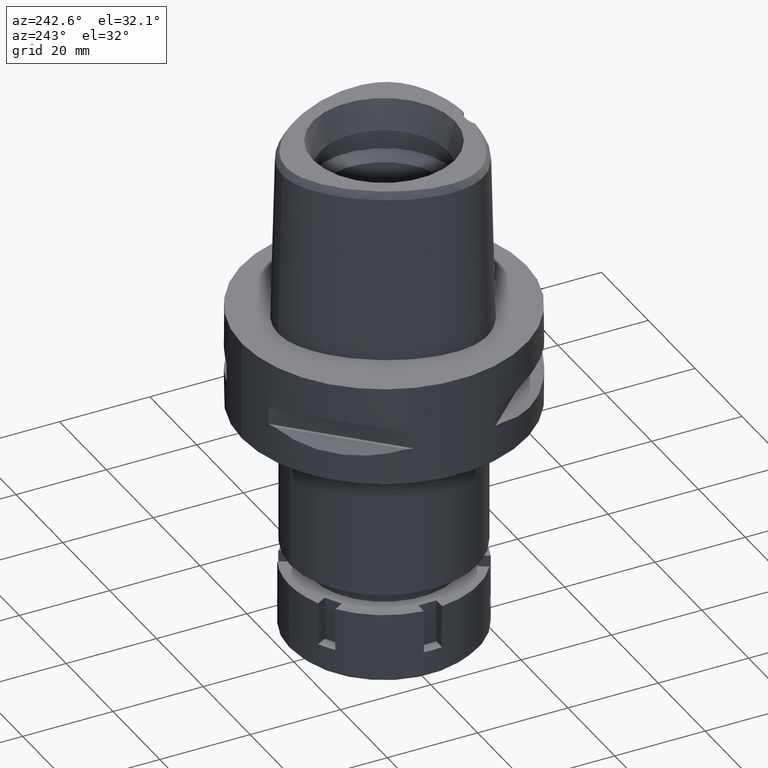
[diagram: clean part render]
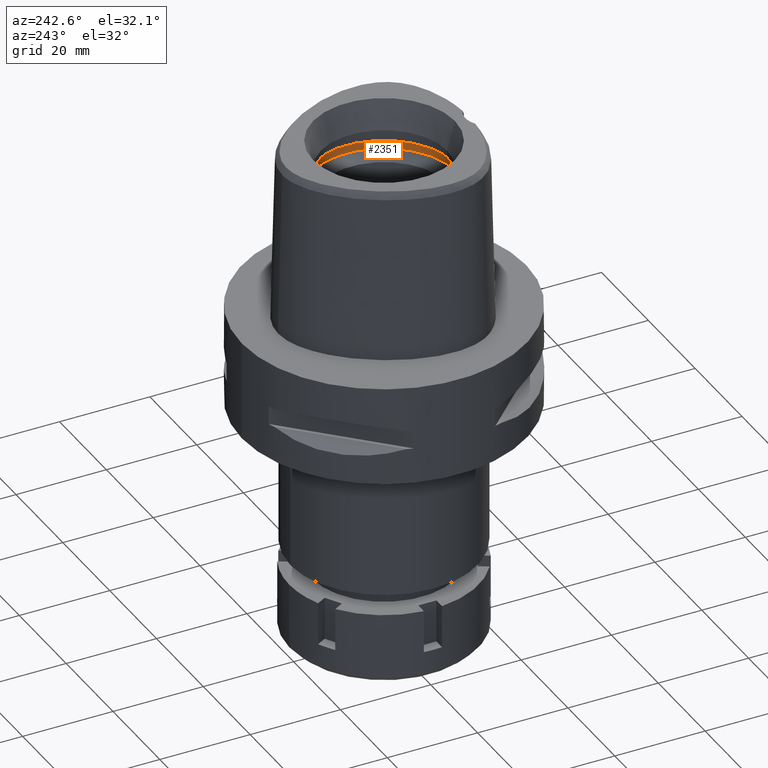
[diagram: same view with one face highlighted and labeled with its STEP entity id]
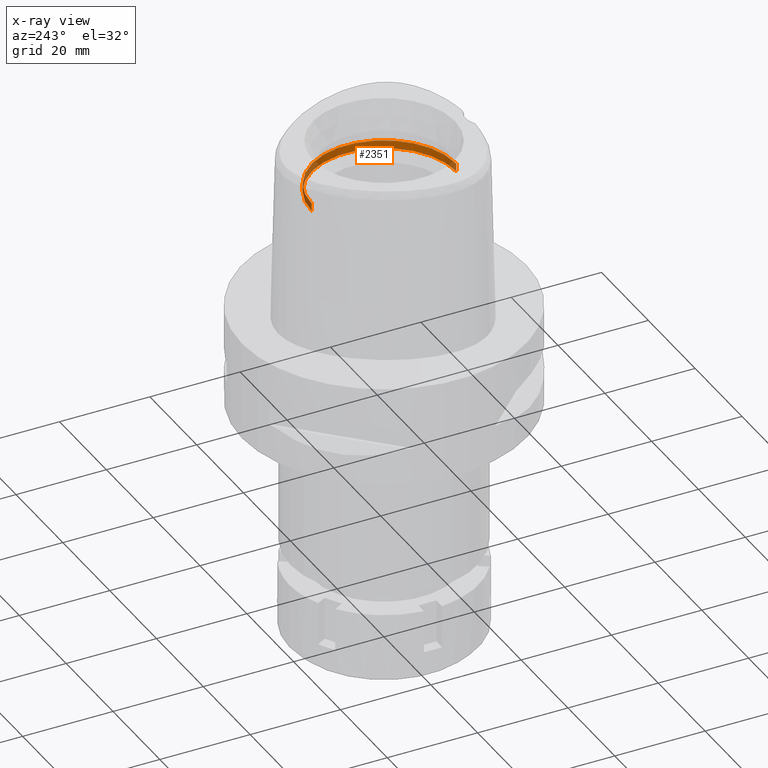
[diagram: x-ray of the same camera — body ghosted, the highlighted face saturated]
A machine part, auxiliary view. The second image highlights one B-rep face of the part: STEP entity #2351.
The next image is the same camera in x-ray: the body ghosted, the highlighted face saturated — about 13% of this face is hidden behind the body in this view.
In plain terms, the highlighted cylindrical surface (partial cylindrical patch) has radius 16 mm, axis along (0, 0, -1).
Its self-contained STEP definition (entity closure, byte-faithful):
#20 = DIRECTION ( 'NONE',  ( 0.0000000000000000000, 0.0000000000000000000, 1.000000000000000000 ) ) ;
#145 = DIRECTION ( 'NONE',  ( 0.0000000000000000000, 1.000000000000000000, 0.0000000000000000000 ) ) ;
#181 = CARTESIAN_POINT ( 'NONE',  ( 0.0000000000000000000, -16.00000000000000000, 28.00000000000000000 ) ) ;
#313 = DIRECTION ( 'NONE',  ( 0.0000000000000000000, 0.0000000000000000000, 1.000000000000000000 ) ) ;
#348 = CYLINDRICAL_SURFACE ( 'NONE', #3820, 16.00000000000000000 ) ;
#351 = ORIENTED_EDGE ( 'NONE', *, *, #1743, .T. ) ;
#457 = AXIS2_PLACEMENT_3D ( 'NONE', #1058, #1956, #145 ) ;
#742 = CARTESIAN_POINT ( 'NONE',  ( 0.0000000000000000000, 0.0000000000000000000, 39.89999999999999858 ) ) ;
#840 = CARTESIAN_POINT ( 'NONE',  ( 0.0000000000000000000, 16.00000000000000000, 28.00000000000000000 ) ) ;
#884 = EDGE_CURVE ( 'NONE', #1982, #2229, #4425, .T. ) ;
#1058 = CARTESIAN_POINT ( 'NONE',  ( 0.0000000000000000000, 0.0000000000000000000, 26.20000000000000284 ) ) ;
#1140 = CARTESIAN_POINT ( 'NONE',  ( 0.0000000000000000000, 16.00000000000000000, 26.20000000000000284 ) ) ;
#1256 = DIRECTION ( 'NONE',  ( 0.0000000000000000000, -1.000000000000000000, 0.0000000000000000000 ) ) ;
#1298 = DIRECTION ( 'NONE',  ( 0.0000000000000000000, -1.000000000000000000, 0.0000000000000000000 ) ) ;
#1503 = VECTOR ( 'NONE', #313, 1000.000000000000000 ) ;
#1743 = EDGE_CURVE ( 'NONE', #3787, #4140, #2764, .T. ) ;
#1758 = EDGE_LOOP ( 'NONE', ( #2208, #4489, #351, #3959 ) ) ;
#1956 = DIRECTION ( 'NONE',  ( 0.0000000000000000000, 0.0000000000000000000, -1.000000000000000000 ) ) ;
#1982 = VERTEX_POINT ( 'NONE', #181 ) ;
#2033 = LINE ( 'NONE', #1140, #4305 ) ;
#2208 = ORIENTED_EDGE ( 'NONE', *, *, #884, .T. ) ;
#2229 = VERTEX_POINT ( 'NONE', #840 ) ;
#2351 = ADVANCED_FACE ( 'NONE', ( #5033 ), #348, .F. ) ;
#2420 = LINE ( 'NONE', #4107, #1503 ) ;
#2612 = EDGE_CURVE ( 'NONE', #4140, #1982, #2420, .T. ) ;
#2628 = CARTESIAN_POINT ( 'NONE',  ( 0.0000000000000000000, 16.00000000000000000, 26.20000000000000284 ) ) ;
#2764 = CIRCLE ( 'NONE', #457, 16.00000000000000000 ) ;
#3787 = VERTEX_POINT ( 'NONE', #2628 ) ;
#3820 = AXIS2_PLACEMENT_3D ( 'NONE', #742, #4115, #1256 ) ;
#3959 = ORIENTED_EDGE ( 'NONE', *, *, #2612, .T. ) ;
#4052 = CARTESIAN_POINT ( 'NONE',  ( 0.0000000000000000000, 0.0000000000000000000, 28.00000000000000000 ) ) ;
#4107 = CARTESIAN_POINT ( 'NONE',  ( 0.0000000000000000000, -16.00000000000000000, 26.20000000000000284 ) ) ;
#4115 = DIRECTION ( 'NONE',  ( 0.0000000000000000000, 0.0000000000000000000, -1.000000000000000000 ) ) ;
#4140 = VERTEX_POINT ( 'NONE', #5441 ) ;
#4305 = VECTOR ( 'NONE', #4487, 1000.000000000000000 ) ;
#4375 = EDGE_CURVE ( 'NONE', #3787, #2229, #2033, .T. ) ;
#4425 = CIRCLE ( 'NONE', #4599, 16.00000000000000000 ) ;
#4487 = DIRECTION ( 'NONE',  ( 0.0000000000000000000, 0.0000000000000000000, 1.000000000000000000 ) ) ;
#4489 = ORIENTED_EDGE ( 'NONE', *, *, #4375, .F. ) ;
#4599 = AXIS2_PLACEMENT_3D ( 'NONE', #4052, #20, #1298 ) ;
#5033 = FACE_OUTER_BOUND ( 'NONE', #1758, .T. ) ;
#5441 = CARTESIAN_POINT ( 'NONE',  ( 0.0000000000000000000, -16.00000000000000000, 26.20000000000000284 ) ) ;